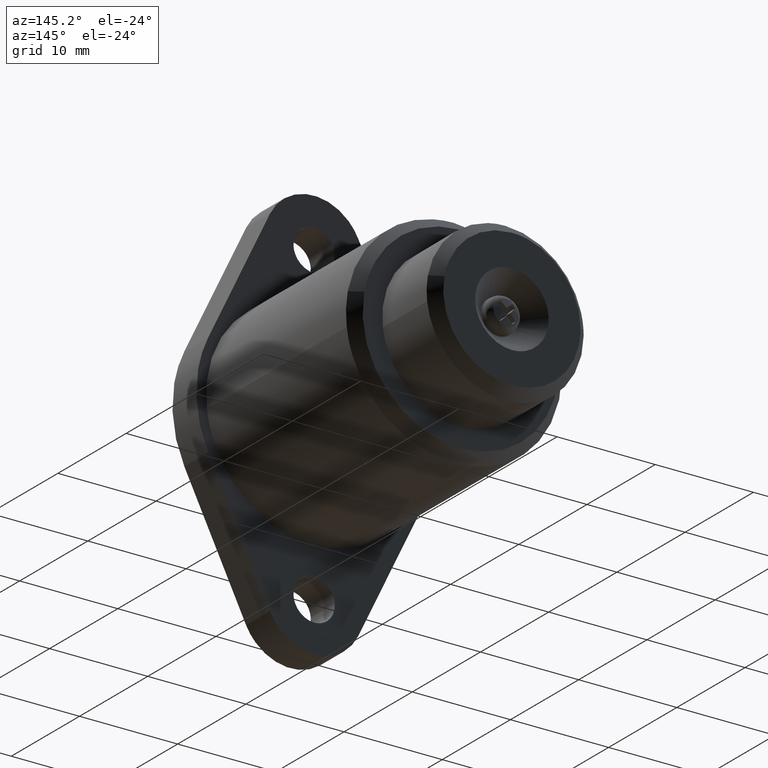
[diagram: clean part render]
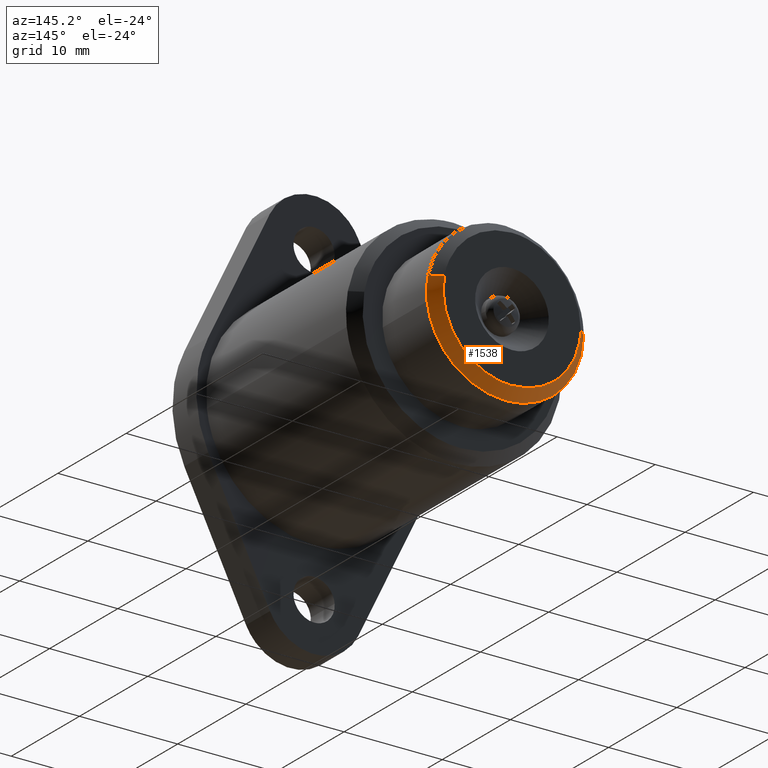
[diagram: same view with one face highlighted and labeled with its STEP entity id]
A machine part, auxiliary view. The second image highlights one B-rep face of the part: STEP entity #1538.
In plain terms, the highlighted face is a freeform B-spline surface patch.
Its self-contained STEP definition (entity closure, byte-faithful):
#1341=CARTESIAN_POINT('',(7.864700997291186,27.999999999981160,1.464999506040496));
#1342=VERTEX_POINT('',#1341);
#1358=CARTESIAN_POINT('',(6.881611104913361,28.999999999999901,1.281875876920605));
#1359=VERTEX_POINT('',#1358);
#1360=CARTESIAN_POINT('',(6.881611104913361,28.999999999999901,1.281875876920605));
#1361=CARTESIAN_POINT('',(7.864700997291186,27.999999999981160,1.464999506040496));
#1362=QUASI_UNIFORM_CURVE('',1,(#1360,#1361),.UNSPECIFIED.,.F.,.U.);
#1363=EDGE_CURVE('',#1359,#1342,#1362,.T.);
#1380=CARTESIAN_POINT('',(-6.999751603255109,28.999999999996021,-0.061075274340515));
#1381=VERTEX_POINT('',#1380);
#1397=CARTESIAN_POINT('',(-7.999713526325029,27.999999999989878,-0.069801809883882));
#1398=VERTEX_POINT('',#1397);
#1399=CARTESIAN_POINT('',(-6.999751603255109,28.999999999996021,-0.061075274340515));
#1400=CARTESIAN_POINT('',(-7.999713526325029,27.999999999989878,-0.069801809883882));
#1401=QUASI_UNIFORM_CURVE('',1,(#1399,#1400),.UNSPECIFIED.,.F.,.U.);
#1402=EDGE_CURVE('',#1381,#1398,#1401,.T.);
#1437=CARTESIAN_POINT('',(-6.974752555174778,29.024999999999999,-0.060857110923956));
#1438=CARTESIAN_POINT('',(-6.913884970073620,29.025000000000006,-7.035591524296542));
#1439=CARTESIAN_POINT('',(0.060849443298968,29.024999999999999,-6.974723939195386));
#1440=CARTESIAN_POINT('',(7.035583856671555,29.025000000000006,-6.913856354094228));
#1441=CARTESIAN_POINT('',(6.974716271570397,29.024999999999999,0.060878059278360));
#1442=CARTESIAN_POINT('',(6.969363345416299,29.024999999999995,0.674262641518413));
#1443=CARTESIAN_POINT('',(6.857033857603708,29.025000000000006,1.277297786195716));
#1444=CARTESIAN_POINT('',(-8.025337550594079,27.974374999999998,-0.070025427281935));
#1445=CARTESIAN_POINT('',(-7.955301649134943,27.974375000000006,-8.095344836073824));
#1446=CARTESIAN_POINT('',(0.070017759656947,27.974374999999998,-8.025308934614687));
#1447=CARTESIAN_POINT('',(8.095337168448836,27.974375000000006,-7.955273033155549));
#1448=CARTESIAN_POINT('',(8.025301266989699,27.974374999999998,0.070046375636339));
#1449=CARTESIAN_POINT('',(8.019142044342317,27.974374999999991,0.775823384645705));
#1450=CARTESIAN_POINT('',(7.889892675793798,27.974374999999998,1.469692048875209));
#1458=(BOUNDED_SURFACE()B_SPLINE_SURFACE(2,1,((#1437,#1444),(#1438,#1445),(#1439,#1446),(#1440,#1447),(#1441,#1448),(#1442,#1449),(#1443,#1450)),.UNSPECIFIED.,.F.,.F.,.U.)B_SPLINE_SURFACE_WITH_KNOTS((3,2,2,3),(2,2),(0.0,13.297290886082290,26.594581772164570,28.190256678494450),(0.0,1.0),.UNSPECIFIED.)GEOMETRIC_REPRESENTATION_ITEM()RATIONAL_B_SPLINE_SURFACE(((1.0,1.0),(0.707106781186548,0.707106781186548),(1.0,1.0),(0.707106781186548,0.707106781186548),(1.0,1.0),(0.964852813742386,0.964852813742386),(0.938140952186599,0.938140952186599)))REPRESENTATION_ITEM('')SURFACE());
#1459=CARTESIAN_POINT('',(7.944058069103263,28.0,-0.944263403109490));
#1460=VERTEX_POINT('',#1459);
#1461=CARTESIAN_POINT('',(7.944058069103263,27.999999999999996,-0.944263403109490));
#1462=CARTESIAN_POINT('',(7.999981858197810,28.0,-0.473782483071048));
#1463=CARTESIAN_POINT('',(7.999981858197810,28.0,0.000010474177202));
#1464=CARTESIAN_POINT('',(7.999981858197810,27.999999999999996,0.738751081772694));
#1465=CARTESIAN_POINT('',(7.864700997291186,27.999999999981156,1.464999506040497));
#1473=(BOUNDED_CURVE()B_SPLINE_CURVE(2,(#1461,#1462,#1463,#1464,#1465),.UNSPECIFIED.,.F.,.U.)B_SPLINE_CURVE_WITH_KNOTS((3,2,3),(0.229562473514256,0.250000000000000,0.281445263719689),.UNSPECIFIED.)CURVE()GEOMETRIC_REPRESENTATION_ITEM()RATIONAL_B_SPLINE_CURVE((0.956026754185165,0.976055948332021,1.0,0.963159581970809,0.935586817225390))REPRESENTATION_ITEM(''));
#1474=EDGE_CURVE('',#1460,#1342,#1473,.T.);
#1475=ORIENTED_EDGE('',*,*,#1474,.F.);
#1476=CARTESIAN_POINT('',(-0.000018141802190,28.0,-7.999989525822797));
#1477=VERTEX_POINT('',#1476);
#1478=CARTESIAN_POINT('',(-0.000018141802190,28.0,-7.999989525822797));
#1479=CARTESIAN_POINT('',(7.105378065749977,28.0,-7.999989525822798));
#1480=CARTESIAN_POINT('',(7.944058069103263,28.0,-0.944263403109490));
#1488=(BOUNDED_CURVE()B_SPLINE_CURVE(2,(#1478,#1479,#1480),.UNSPECIFIED.,.F.,.U.)B_SPLINE_CURVE_WITH_KNOTS((3,3),(0.0,0.229562473514256),.UNSPECIFIED.)CURVE()GEOMETRIC_REPRESENTATION_ITEM()RATIONAL_B_SPLINE_CURVE((1.0,0.731050832854526,0.956026754185165))REPRESENTATION_ITEM(''));
#1489=EDGE_CURVE('',#1477,#1460,#1488,.T.);
#1490=ORIENTED_EDGE('',*,*,#1489,.F.);
#1491=CARTESIAN_POINT('',(-7.999713526325030,27.999999999989882,-0.069801809883882));
#1492=CARTESIAN_POINT('',(-7.930507826415282,28.0,-7.999989525822797));
#1493=CARTESIAN_POINT('',(-0.000018141802190,28.0,-7.999989525822797));
#1501=(BOUNDED_CURVE()B_SPLINE_CURVE(2,(#1491,#1492,#1493),.UNSPECIFIED.,.F.,.U.)B_SPLINE_CURVE_WITH_KNOTS((3,3),(0.751539894338246,1.0),.UNSPECIFIED.)CURVE()GEOMETRIC_REPRESENTATION_ITEM()RATIONAL_B_SPLINE_CURVE((0.996414028092864,0.708910879623994,1.0))REPRESENTATION_ITEM(''));
#1502=EDGE_CURVE('',#1398,#1477,#1501,.T.);
#1503=ORIENTED_EDGE('',*,*,#1502,.F.);
#1504=ORIENTED_EDGE('',*,*,#1402,.F.);
#1505=CARTESIAN_POINT('',(-0.000018141802190,29.0,-6.999989525822798));
#1506=VERTEX_POINT('',#1505);
#1507=CARTESIAN_POINT('',(-0.000018141802190,29.0,-6.999989525822798));
#1508=CARTESIAN_POINT('',(-6.939196615909407,29.000000000000004,-6.999989525822796));
#1509=CARTESIAN_POINT('',(-6.999751603255109,28.999999999996017,-0.061075274340515));
#1517=(BOUNDED_CURVE()B_SPLINE_CURVE(2,(#1507,#1508,#1509),.UNSPECIFIED.,.F.,.U.)B_SPLINE_CURVE_WITH_KNOTS((3,3),(0.0,0.248460105663550),.UNSPECIFIED.)CURVE()GEOMETRIC_REPRESENTATION_ITEM()RATIONAL_B_SPLINE_CURVE((1.0,0.708910879621889,0.996414028097020))REPRESENTATION_ITEM(''));
#1518=EDGE_CURVE('',#1506,#1381,#1517,.T.);
#1519=ORIENTED_EDGE('',*,*,#1518,.F.);
#1520=CARTESIAN_POINT('',(6.881611104913361,28.999999999999904,1.281875876920606));
#1521=CARTESIAN_POINT('',(6.999981858197809,28.999999999999996,0.646408505685819));
#1522=CARTESIAN_POINT('',(6.999981858197810,29.0,0.000010474177202));
#1523=CARTESIAN_POINT('',(6.999981858197810,29.000000000000007,-6.999989525822798));
#1524=CARTESIAN_POINT('',(-0.000018141802190,29.0,-6.999989525822798));
#1532=(BOUNDED_CURVE()B_SPLINE_CURVE(2,(#1520,#1521,#1522,#1523,#1524),.UNSPECIFIED.,.F.,.U.)B_SPLINE_CURVE_WITH_KNOTS((3,2,3),(0.718554736286750,0.750000000000000,1.0),.UNSPECIFIED.)CURVE()GEOMETRIC_REPRESENTATION_ITEM()RATIONAL_B_SPLINE_CURVE((0.935586817236683,0.963159581978354,1.0,0.707106781186547,1.0))REPRESENTATION_ITEM(''));
#1533=EDGE_CURVE('',#1359,#1506,#1532,.T.);
#1534=ORIENTED_EDGE('',*,*,#1533,.F.);
#1535=ORIENTED_EDGE('',*,*,#1363,.T.);
#1536=EDGE_LOOP('',(#1475,#1490,#1503,#1504,#1519,#1534,#1535));
#1537=FACE_OUTER_BOUND('',#1536,.T.);
#1538=ADVANCED_FACE('',(#1537),#1458,.T.);